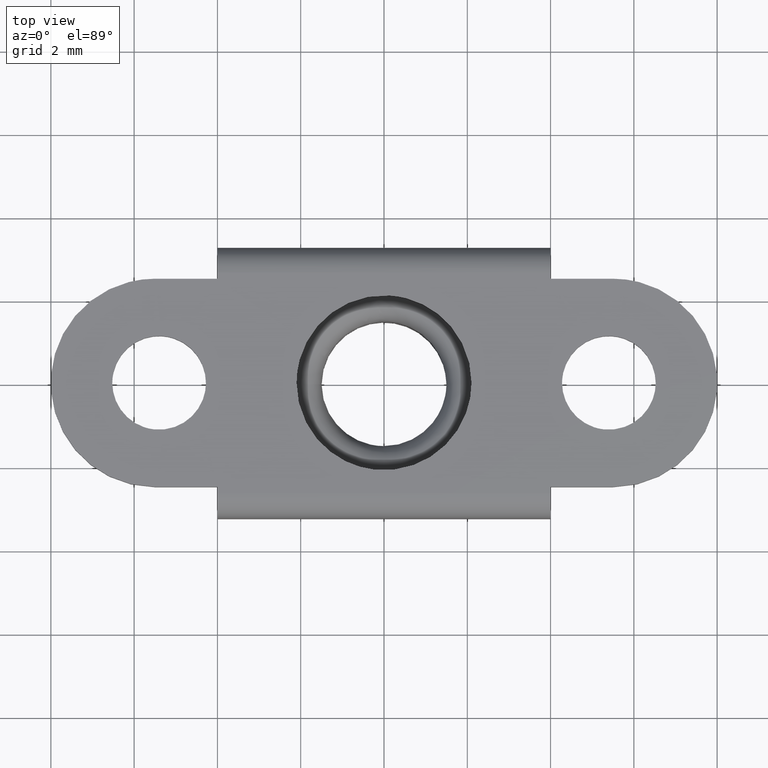
[diagram: clean part render]
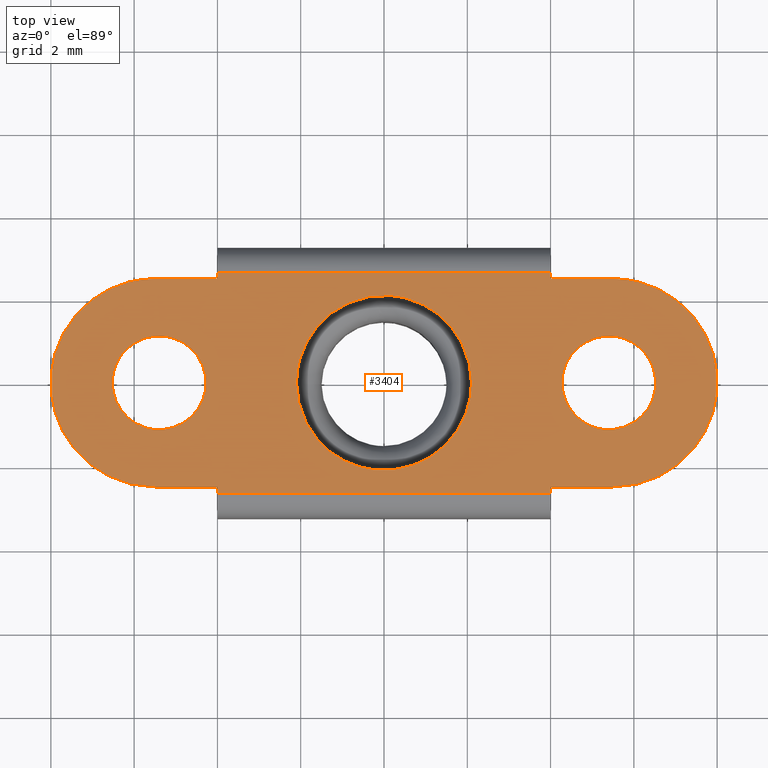
[diagram: same view with one face highlighted and labeled with its STEP entity id]
A machine part, top view. The second image highlights one B-rep face of the part: STEP entity #3404.
In plain terms, the highlighted face is a freeform B-spline surface patch.
Its self-contained STEP definition (entity closure, byte-faithful):
#1207=CARTESIAN_POINT('',(-0.247871027161816,-2.085320108255082,-1.744208E-014));
#1208=VERTEX_POINT('',#1207);
#1209=CARTESIAN_POINT('',(2.100000000000000,0.0,0.0));
#1210=VERTEX_POINT('',#1209);
#1211=CARTESIAN_POINT('',(-0.247871027161816,-2.085320108255082,-1.744208E-014));
#1212=CARTESIAN_POINT('',(-0.124369776500502,-2.100000000000000,0.0));
#1213=CARTESIAN_POINT('',(0.0,-2.100000000000000,0.0));
#1214=CARTESIAN_POINT('',(2.100000000000000,-2.100000000000000,0.0));
#1215=CARTESIAN_POINT('',(2.100000000000000,0.0,0.0));
#1223=(BOUNDED_CURVE()B_SPLINE_CURVE(2,(#1211,#1212,#1213,#1214,#1215),.UNSPECIFIED.,.F.,.U.)B_SPLINE_CURVE_WITH_KNOTS((3,2,3),(0.229562613822325,0.250000000000000,0.500000000000000),.UNSPECIFIED.)CURVE()GEOMETRIC_REPRESENTATION_ITEM()RATIONAL_B_SPLINE_CURVE((0.956027029194906,0.976056112713149,1.0,0.707106781186548,1.0))REPRESENTATION_ITEM(''));
#1224=EDGE_CURVE('',#1208,#1210,#1223,.T.);
#1226=CARTESIAN_POINT('',(0.128201933032470,2.096083076685353,1.994932E-017));
#1227=VERTEX_POINT('',#1226);
#1228=CARTESIAN_POINT('',(2.100000000000000,0.0,0.0));
#1229=CARTESIAN_POINT('',(2.100000000000000,1.975482740484448,0.0));
#1230=CARTESIAN_POINT('',(0.128201933032470,2.096083076685353,1.994932E-017));
#1238=(BOUNDED_CURVE()B_SPLINE_CURVE(2,(#1228,#1229,#1230),.UNSPECIFIED.,.F.,.U.)B_SPLINE_CURVE_WITH_KNOTS((3,3),(0.500000000000000,0.739332962240442),.UNSPECIFIED.)CURVE()GEOMETRIC_REPRESENTATION_ITEM()RATIONAL_B_SPLINE_CURVE((1.0,0.719603993284954,0.976072041669930))REPRESENTATION_ITEM(''));
#1239=EDGE_CURVE('',#1210,#1227,#1238,.T.);
#1306=CARTESIAN_POINT('',(-2.100000000000000,0.0,0.0));
#1307=VERTEX_POINT('',#1306);
#1308=CARTESIAN_POINT('',(-2.100000000000000,0.0,0.0));
#1309=CARTESIAN_POINT('',(-2.100000000000001,-1.865168063862160,0.0));
#1310=CARTESIAN_POINT('',(-0.247871027161816,-2.085320108255082,-1.744208E-014));
#1318=(BOUNDED_CURVE()B_SPLINE_CURVE(2,(#1308,#1309,#1310),.UNSPECIFIED.,.F.,.U.)B_SPLINE_CURVE_WITH_KNOTS((3,3),(0.0,0.229562613822325),.UNSPECIFIED.)CURVE()GEOMETRIC_REPRESENTATION_ITEM()RATIONAL_B_SPLINE_CURVE((1.0,0.731050668473399,0.956027029194906))REPRESENTATION_ITEM(''));
#1319=EDGE_CURVE('',#1307,#1208,#1318,.T.);
#1353=CARTESIAN_POINT('',(0.128201933032470,2.096083076685354,1.994932E-017));
#1354=CARTESIAN_POINT('',(0.064160802936333,2.100000000000000,0.0));
#1355=CARTESIAN_POINT('',(0.0,2.100000000000000,0.0));
#1356=CARTESIAN_POINT('',(-2.100000000000000,2.100000000000000,0.0));
#1357=CARTESIAN_POINT('',(-2.100000000000000,0.0,0.0));
#1365=(BOUNDED_CURVE()B_SPLINE_CURVE(2,(#1353,#1354,#1355,#1356,#1357),.UNSPECIFIED.,.F.,.U.)B_SPLINE_CURVE_WITH_KNOTS((3,2,3),(0.739332962240442,0.750000000000000,1.0),.UNSPECIFIED.)CURVE()GEOMETRIC_REPRESENTATION_ITEM()RATIONAL_B_SPLINE_CURVE((0.976072041669931,0.987502787901594,1.0,0.707106781186548,1.0))REPRESENTATION_ITEM(''));
#1366=EDGE_CURVE('',#1227,#1307,#1365,.T.);
#1393=CARTESIAN_POINT('',(5.267211486004992,-1.117135717158393,1.952107E-017));
#1394=VERTEX_POINT('',#1393);
#1395=CARTESIAN_POINT('',(6.525000000000000,0.0,0.0));
#1396=VERTEX_POINT('',#1395);
#1397=CARTESIAN_POINT('',(5.267211486004992,-1.117135717158393,1.952107E-017));
#1398=CARTESIAN_POINT('',(5.333372865385381,-1.125000000000000,0.0));
#1399=CARTESIAN_POINT('',(5.400000000000000,-1.125000000000000,0.0));
#1400=CARTESIAN_POINT('',(6.525000000000000,-1.125000000000000,0.0));
#1401=CARTESIAN_POINT('',(6.525000000000000,0.0,0.0));
#1409=(BOUNDED_CURVE()B_SPLINE_CURVE(2,(#1397,#1398,#1399,#1400,#1401),.UNSPECIFIED.,.F.,.U.)B_SPLINE_CURVE_WITH_KNOTS((3,2,3),(0.229562473513782,0.250000000000000,0.500000000000000),.UNSPECIFIED.)CURVE()GEOMETRIC_REPRESENTATION_ITEM()RATIONAL_B_SPLINE_CURVE((0.956026754184236,0.976055948331466,1.0,0.707106781186547,1.0))REPRESENTATION_ITEM(''));
#1410=EDGE_CURVE('',#1394,#1396,#1409,.T.);
#1412=CARTESIAN_POINT('',(5.468679606994621,1.122901648223505,1.994932E-017));
#1413=VERTEX_POINT('',#1412);
#1414=CARTESIAN_POINT('',(6.525000000000000,0.0,0.0));
#1415=CARTESIAN_POINT('',(6.525000000000000,1.058294325235089,0.0));
#1416=CARTESIAN_POINT('',(5.468679606994621,1.122901648223505,1.994932E-017));
#1424=(BOUNDED_CURVE()B_SPLINE_CURVE(2,(#1414,#1415,#1416),.UNSPECIFIED.,.F.,.U.)B_SPLINE_CURVE_WITH_KNOTS((3,3),(0.500000000000000,0.739332962236465),.UNSPECIFIED.)CURVE()GEOMETRIC_REPRESENTATION_ITEM()RATIONAL_B_SPLINE_CURVE((1.0,0.719603993289613,0.976072041661407))REPRESENTATION_ITEM(''));
#1425=EDGE_CURVE('',#1396,#1413,#1424,.T.);
#1492=CARTESIAN_POINT('',(4.275000000000000,0.0,0.0));
#1493=VERTEX_POINT('',#1492);
#1494=CARTESIAN_POINT('',(4.275000000000000,0.0,0.0));
#1495=CARTESIAN_POINT('',(4.275000000000000,-0.999196341684201,0.0));
#1496=CARTESIAN_POINT('',(5.267211486004992,-1.117135717158393,1.952107E-017));
#1504=(BOUNDED_CURVE()B_SPLINE_CURVE(2,(#1494,#1495,#1496),.UNSPECIFIED.,.F.,.U.)B_SPLINE_CURVE_WITH_KNOTS((3,3),(0.0,0.229562473513782),.UNSPECIFIED.)CURVE()GEOMETRIC_REPRESENTATION_ITEM()RATIONAL_B_SPLINE_CURVE((1.0,0.731050832855082,0.956026754184236))REPRESENTATION_ITEM(''));
#1505=EDGE_CURVE('',#1493,#1394,#1504,.T.);
#1539=CARTESIAN_POINT('',(5.468679606994621,1.122901648223505,1.994932E-017));
#1540=CARTESIAN_POINT('',(5.434371858728871,1.125000000000001,0.0));
#1541=CARTESIAN_POINT('',(5.400000000000000,1.125000000000000,0.0));
#1542=CARTESIAN_POINT('',(4.275000000000000,1.125000000000000,0.0));
#1543=CARTESIAN_POINT('',(4.275000000000000,0.0,0.0));
#1551=(BOUNDED_CURVE()B_SPLINE_CURVE(2,(#1539,#1540,#1541,#1542,#1543),.UNSPECIFIED.,.F.,.U.)B_SPLINE_CURVE_WITH_KNOTS((3,2,3),(0.739332962236465,0.750000000000000,1.0),.UNSPECIFIED.)CURVE()GEOMETRIC_REPRESENTATION_ITEM()RATIONAL_B_SPLINE_CURVE((0.976072041661407,0.987502787896934,1.0,0.707106781186547,1.0))REPRESENTATION_ITEM(''));
#1552=EDGE_CURVE('',#1413,#1493,#1551,.T.);
#1579=CARTESIAN_POINT('',(-5.532788513995008,-1.117135717158393,1.952107E-017));
#1580=VERTEX_POINT('',#1579);
#1581=CARTESIAN_POINT('',(-4.275000000000000,0.0,0.0));
#1582=VERTEX_POINT('',#1581);
#1583=CARTESIAN_POINT('',(-5.532788513995008,-1.117135717158393,1.952107E-017));
#1584=CARTESIAN_POINT('',(-5.466627134614619,-1.125000000000000,0.0));
#1585=CARTESIAN_POINT('',(-5.400000000000000,-1.125000000000000,0.0));
#1586=CARTESIAN_POINT('',(-4.275000000000000,-1.125000000000000,0.0));
#1587=CARTESIAN_POINT('',(-4.275000000000000,0.0,0.0));
#1595=(BOUNDED_CURVE()B_SPLINE_CURVE(2,(#1583,#1584,#1585,#1586,#1587),.UNSPECIFIED.,.F.,.U.)B_SPLINE_CURVE_WITH_KNOTS((3,2,3),(0.229562473513782,0.250000000000000,0.500000000000000),.UNSPECIFIED.)CURVE()GEOMETRIC_REPRESENTATION_ITEM()RATIONAL_B_SPLINE_CURVE((0.956026754184236,0.976055948331466,1.0,0.707106781186547,1.0))REPRESENTATION_ITEM(''));
#1596=EDGE_CURVE('',#1580,#1582,#1595,.T.);
#1598=CARTESIAN_POINT('',(-5.331320393005379,1.122901648223505,1.994932E-017));
#1599=VERTEX_POINT('',#1598);
#1600=CARTESIAN_POINT('',(-4.275000000000000,0.0,0.0));
#1601=CARTESIAN_POINT('',(-4.275000000000000,1.058294325235089,0.0));
#1602=CARTESIAN_POINT('',(-5.331320393005379,1.122901648223505,1.994932E-017));
#1610=(BOUNDED_CURVE()B_SPLINE_CURVE(2,(#1600,#1601,#1602),.UNSPECIFIED.,.F.,.U.)B_SPLINE_CURVE_WITH_KNOTS((3,3),(0.500000000000000,0.739332962236465),.UNSPECIFIED.)CURVE()GEOMETRIC_REPRESENTATION_ITEM()RATIONAL_B_SPLINE_CURVE((1.0,0.719603993289613,0.976072041661407))REPRESENTATION_ITEM(''));
#1611=EDGE_CURVE('',#1582,#1599,#1610,.T.);
#1678=CARTESIAN_POINT('',(-6.525000000000000,0.0,0.0));
#1679=VERTEX_POINT('',#1678);
#1680=CARTESIAN_POINT('',(-6.525000000000000,0.0,0.0));
#1681=CARTESIAN_POINT('',(-6.525000000000000,-0.999196341684203,0.0));
#1682=CARTESIAN_POINT('',(-5.532788513995008,-1.117135717158393,1.952107E-017));
#1690=(BOUNDED_CURVE()B_SPLINE_CURVE(2,(#1680,#1681,#1682),.UNSPECIFIED.,.F.,.U.)B_SPLINE_CURVE_WITH_KNOTS((3,3),(0.0,0.229562473513782),.UNSPECIFIED.)CURVE()GEOMETRIC_REPRESENTATION_ITEM()RATIONAL_B_SPLINE_CURVE((1.0,0.731050832855081,0.956026754184236))REPRESENTATION_ITEM(''));
#1691=EDGE_CURVE('',#1679,#1580,#1690,.T.);
#1725=CARTESIAN_POINT('',(-5.331320393005379,1.122901648223504,1.994932E-017));
#1726=CARTESIAN_POINT('',(-5.365628141271131,1.125000000000000,0.0));
#1727=CARTESIAN_POINT('',(-5.400000000000000,1.125000000000000,0.0));
#1728=CARTESIAN_POINT('',(-6.525000000000000,1.125000000000000,0.0));
#1729=CARTESIAN_POINT('',(-6.525000000000000,0.0,0.0));
#1737=(BOUNDED_CURVE()B_SPLINE_CURVE(2,(#1725,#1726,#1727,#1728,#1729),.UNSPECIFIED.,.F.,.U.)B_SPLINE_CURVE_WITH_KNOTS((3,2,3),(0.739332962236465,0.750000000000000,1.0),.UNSPECIFIED.)CURVE()GEOMETRIC_REPRESENTATION_ITEM()RATIONAL_B_SPLINE_CURVE((0.976072041661407,0.987502787896934,1.0,0.707106781186547,1.0))REPRESENTATION_ITEM(''));
#1738=EDGE_CURVE('',#1599,#1679,#1737,.T.);
#2003=CARTESIAN_POINT('',(-4.0,-2.650000000000000,-1.622603E-016));
#2004=VERTEX_POINT('',#2003);
#2025=CARTESIAN_POINT('',(4.0,-2.650000000000000,-1.622603E-016));
#2026=VERTEX_POINT('',#2025);
#2040=CARTESIAN_POINT('',(-4.0,-2.650000000000000,-1.622603E-016));
#2041=CARTESIAN_POINT('',(4.0,-2.650000000000000,-1.622603E-016));
#2042=QUASI_UNIFORM_CURVE('',1,(#2040,#2041),.UNSPECIFIED.,.F.,.U.);
#2043=EDGE_CURVE('',#2004,#2026,#2042,.T.);
#2062=CARTESIAN_POINT('',(-4.0,2.650000000000000,1.622603E-016));
#2063=VERTEX_POINT('',#2062);
#2079=CARTESIAN_POINT('',(4.0,2.650000000000000,1.622603E-016));
#2080=VERTEX_POINT('',#2079);
#2081=CARTESIAN_POINT('',(4.0,2.650000000000000,1.622603E-016));
#2082=CARTESIAN_POINT('',(-4.0,2.650000000000000,1.622603E-016));
#2083=QUASI_UNIFORM_CURVE('',1,(#2081,#2082),.UNSPECIFIED.,.F.,.U.);
#2084=EDGE_CURVE('',#2080,#2063,#2083,.T.);
#3026=CARTESIAN_POINT('',(-5.500000000000000,-2.500000000000000,0.0));
#3027=VERTEX_POINT('',#3026);
#3028=CARTESIAN_POINT('',(-4.0,-2.500000000000000,0.0));
#3029=VERTEX_POINT('',#3028);
#3030=CARTESIAN_POINT('',(-5.500000000000000,-2.500000000000000,0.0));
#3031=CARTESIAN_POINT('',(-4.0,-2.500000000000000,0.0));
#3032=QUASI_UNIFORM_CURVE('',1,(#3030,#3031),.UNSPECIFIED.,.F.,.U.);
#3033=EDGE_CURVE('',#3027,#3029,#3032,.T.);
#3075=CARTESIAN_POINT('',(-5.500000000000000,2.500000000000000,0.0));
#3076=VERTEX_POINT('',#3075);
#3077=CARTESIAN_POINT('',(-5.500000000000000,-2.500000000000000,0.0));
#3078=CARTESIAN_POINT('',(-8.0,-2.500000000000000,0.0));
#3079=CARTESIAN_POINT('',(-8.0,0.0,0.0));
#3080=CARTESIAN_POINT('',(-8.0,2.500000000000000,0.0));
#3081=CARTESIAN_POINT('',(-5.500000000000000,2.500000000000000,0.0));
#3089=(BOUNDED_CURVE()B_SPLINE_CURVE(2,(#3077,#3078,#3079,#3080,#3081),.UNSPECIFIED.,.F.,.U.)B_SPLINE_CURVE_WITH_KNOTS((3,2,3),(0.0,0.500000000000000,1.0),.UNSPECIFIED.)CURVE()GEOMETRIC_REPRESENTATION_ITEM()RATIONAL_B_SPLINE_CURVE((1.0,0.707106781186548,1.0,0.707106781186548,1.0))REPRESENTATION_ITEM(''));
#3090=EDGE_CURVE('',#3027,#3076,#3089,.T.);
#3123=CARTESIAN_POINT('',(-4.0,2.499999999999901,1.530758E-016));
#3124=VERTEX_POINT('',#3123);
#3125=CARTESIAN_POINT('',(-4.0,2.499999999999901,1.530758E-016));
#3126=CARTESIAN_POINT('',(-5.500000000000000,2.500000000000000,0.0));
#3127=QUASI_UNIFORM_CURVE('',1,(#3125,#3126),.UNSPECIFIED.,.F.,.U.);
#3128=EDGE_CURVE('',#3124,#3076,#3127,.T.);
#3151=CARTESIAN_POINT('',(5.500000000000000,-2.500000000000000,0.0));
#3152=VERTEX_POINT('',#3151);
#3153=CARTESIAN_POINT('',(4.0,-2.500000000000000,-1.530758E-016));
#3154=VERTEX_POINT('',#3153);
#3155=CARTESIAN_POINT('',(5.500000000000000,-2.500000000000000,0.0));
#3156=CARTESIAN_POINT('',(4.0,-2.500000000000000,-1.530758E-016));
#3157=QUASI_UNIFORM_CURVE('',1,(#3155,#3156),.UNSPECIFIED.,.F.,.U.);
#3158=EDGE_CURVE('',#3152,#3154,#3157,.T.);
#3200=CARTESIAN_POINT('',(5.500000000000000,2.500000000000000,0.0));
#3201=VERTEX_POINT('',#3200);
#3202=CARTESIAN_POINT('',(5.500000000000000,-2.500000000000000,0.0));
#3203=CARTESIAN_POINT('',(8.0,-2.500000000000000,0.0));
#3204=CARTESIAN_POINT('',(8.0,0.0,0.0));
#3205=CARTESIAN_POINT('',(8.0,2.500000000000000,0.0));
#3206=CARTESIAN_POINT('',(5.500000000000000,2.500000000000000,0.0));
#3214=(BOUNDED_CURVE()B_SPLINE_CURVE(2,(#3202,#3203,#3204,#3205,#3206),.UNSPECIFIED.,.F.,.U.)B_SPLINE_CURVE_WITH_KNOTS((3,2,3),(0.0,0.500000000000000,1.0),.UNSPECIFIED.)CURVE()GEOMETRIC_REPRESENTATION_ITEM()RATIONAL_B_SPLINE_CURVE((1.0,0.707106781186548,1.0,0.707106781186548,1.0))REPRESENTATION_ITEM(''));
#3215=EDGE_CURVE('',#3152,#3201,#3214,.T.);
#3248=CARTESIAN_POINT('',(4.0,2.499999999999901,0.0));
#3249=VERTEX_POINT('',#3248);
#3250=CARTESIAN_POINT('',(4.0,2.499999999999901,0.0));
#3251=CARTESIAN_POINT('',(5.500000000000000,2.500000000000000,0.0));
#3252=QUASI_UNIFORM_CURVE('',1,(#3250,#3251),.UNSPECIFIED.,.F.,.U.);
#3253=EDGE_CURVE('',#3249,#3201,#3252,.T.);
#3284=CARTESIAN_POINT('',(4.0,2.499999999999901,0.0));
#3285=CARTESIAN_POINT('',(4.0,2.650000000000000,1.622603E-016));
#3286=QUASI_UNIFORM_CURVE('',1,(#3284,#3285),.UNSPECIFIED.,.F.,.U.);
#3287=EDGE_CURVE('',#3249,#2080,#3286,.T.);
#3334=CARTESIAN_POINT('',(-4.0,2.499999999999901,1.530758E-016));
#3335=CARTESIAN_POINT('',(-4.0,2.650000000000000,1.622603E-016));
#3336=QUASI_UNIFORM_CURVE('',1,(#3334,#3335),.UNSPECIFIED.,.F.,.U.);
#3337=EDGE_CURVE('',#3124,#2063,#3336,.T.);
#3359=CARTESIAN_POINT('',(-8.799199968988882,-2.914735089232787,-1.989985E-016));
#3360=CARTESIAN_POINT('',(-8.799199968988882,2.914735136618480,-1.989985E-016));
#3361=CARTESIAN_POINT('',(8.799200398142325,-2.914735089232787,-1.989985E-016));
#3362=CARTESIAN_POINT('',(8.799200398142325,2.914735136618480,-1.989985E-016));
#3363=B_SPLINE_SURFACE_WITH_KNOTS('',1,1,((#3359,#3361),(#3360,#3362)),.UNSPECIFIED.,.F.,.F.,.U.,(2,2),(2,2),(0.0,5.829470225851267),(0.0,17.598400367131209),.UNSPECIFIED.);
#3364=ORIENTED_EDGE('',*,*,#3287,.T.);
#3365=ORIENTED_EDGE('',*,*,#2084,.T.);
#3366=ORIENTED_EDGE('',*,*,#3337,.F.);
#3367=ORIENTED_EDGE('',*,*,#3128,.T.);
#3368=ORIENTED_EDGE('',*,*,#3090,.F.);
#3369=ORIENTED_EDGE('',*,*,#3033,.T.);
#3370=CARTESIAN_POINT('',(-4.0,-2.650000000000000,-1.622603E-016));
#3371=CARTESIAN_POINT('',(-4.0,-2.500000000000000,0.0));
#3372=QUASI_UNIFORM_CURVE('',1,(#3370,#3371),.UNSPECIFIED.,.F.,.U.);
#3373=EDGE_CURVE('',#2004,#3029,#3372,.T.);
#3374=ORIENTED_EDGE('',*,*,#3373,.F.);
#3375=ORIENTED_EDGE('',*,*,#2043,.T.);
#3376=CARTESIAN_POINT('',(4.0,-2.650000000000000,-1.622603E-016));
#3377=CARTESIAN_POINT('',(4.0,-2.500000000000000,-1.530758E-016));
#3378=QUASI_UNIFORM_CURVE('',1,(#3376,#3377),.UNSPECIFIED.,.F.,.U.);
#3379=EDGE_CURVE('',#2026,#3154,#3378,.T.);
#3380=ORIENTED_EDGE('',*,*,#3379,.T.);
#3381=ORIENTED_EDGE('',*,*,#3158,.F.);
#3382=ORIENTED_EDGE('',*,*,#3215,.T.);
#3383=ORIENTED_EDGE('',*,*,#3253,.F.);
#3384=EDGE_LOOP('',(#3364,#3365,#3366,#3367,#3368,#3369,#3374,#3375,#3380,#3381,#3382,#3383));
#3385=FACE_OUTER_BOUND('',#3384,.T.);
#3386=ORIENTED_EDGE('',*,*,#1611,.F.);
#3387=ORIENTED_EDGE('',*,*,#1596,.F.);
#3388=ORIENTED_EDGE('',*,*,#1691,.F.);
#3389=ORIENTED_EDGE('',*,*,#1738,.F.);
#3390=EDGE_LOOP('',(#3386,#3387,#3388,#3389));
#3391=FACE_BOUND('',#3390,.T.);
#3392=ORIENTED_EDGE('',*,*,#1425,.F.);
#3393=ORIENTED_EDGE('',*,*,#1410,.F.);
#3394=ORIENTED_EDGE('',*,*,#1505,.F.);
#3395=ORIENTED_EDGE('',*,*,#1552,.F.);
#3396=EDGE_LOOP('',(#3392,#3393,#3394,#3395));
#3397=FACE_BOUND('',#3396,.T.);
#3398=ORIENTED_EDGE('',*,*,#1239,.F.);
#3399=ORIENTED_EDGE('',*,*,#1224,.F.);
#3400=ORIENTED_EDGE('',*,*,#1319,.F.);
#3401=ORIENTED_EDGE('',*,*,#1366,.F.);
#3402=EDGE_LOOP('',(#3398,#3399,#3400,#3401));
#3403=FACE_BOUND('',#3402,.T.);
#3404=ADVANCED_FACE('',(#3385,#3391,#3397,#3403),#3363,.F.);